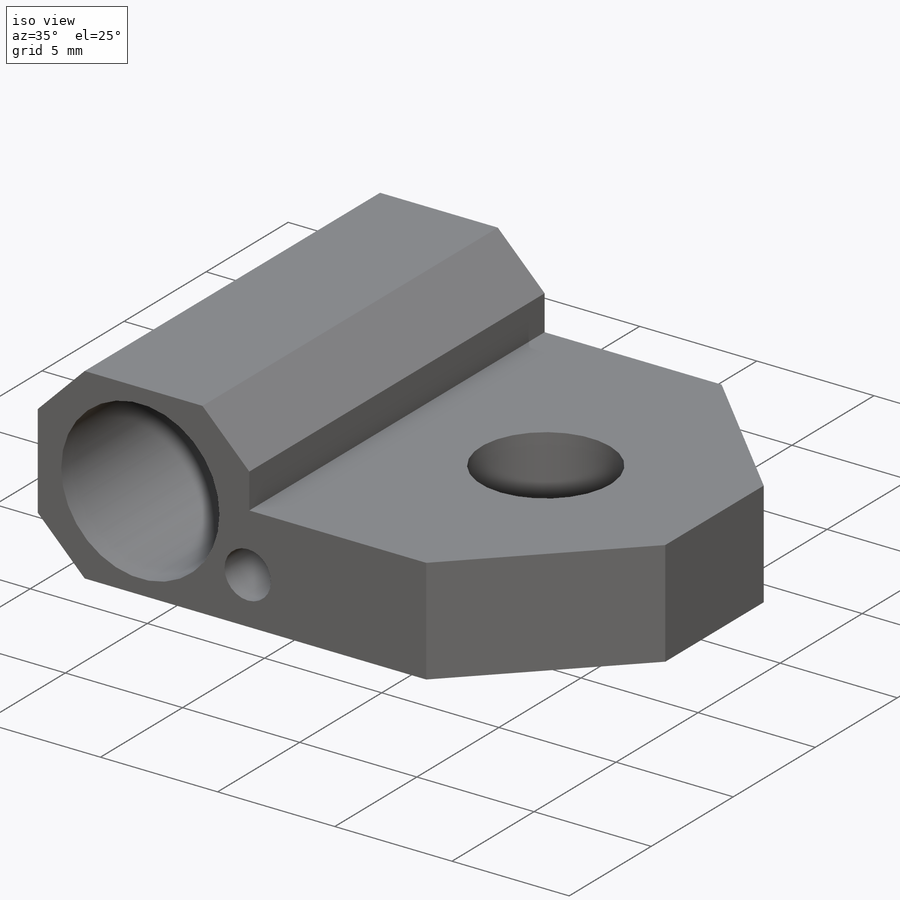
[diagram: iso view]
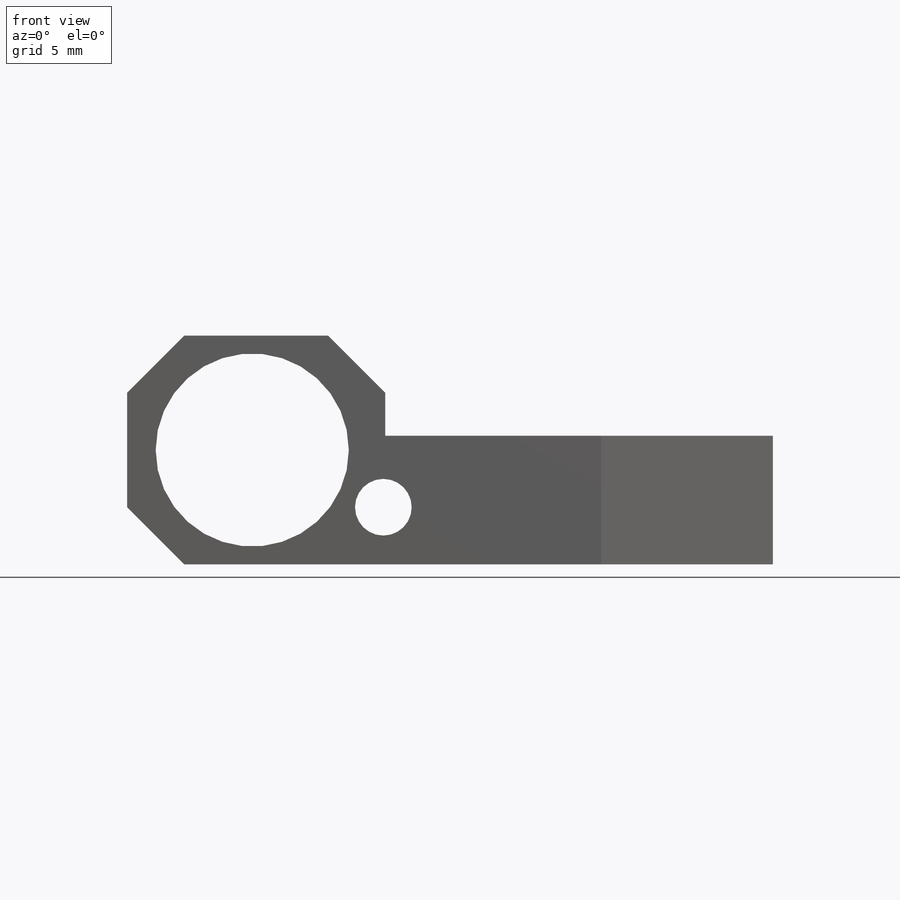
[diagram: front view]
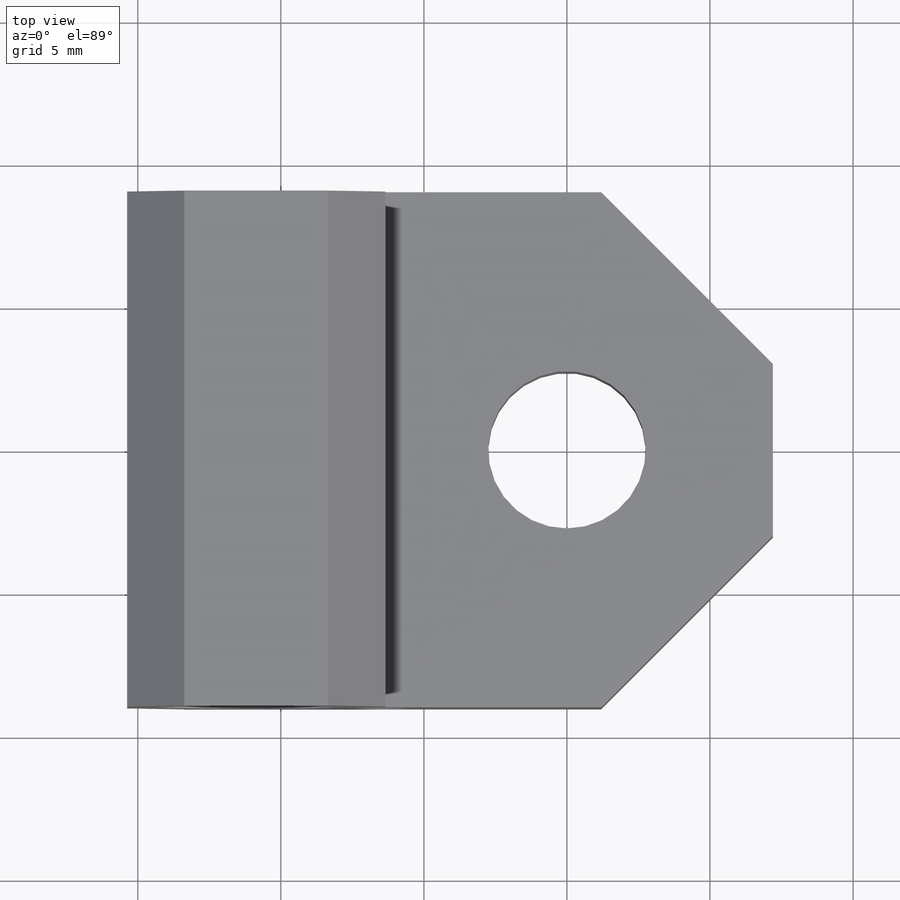
[diagram: top view]
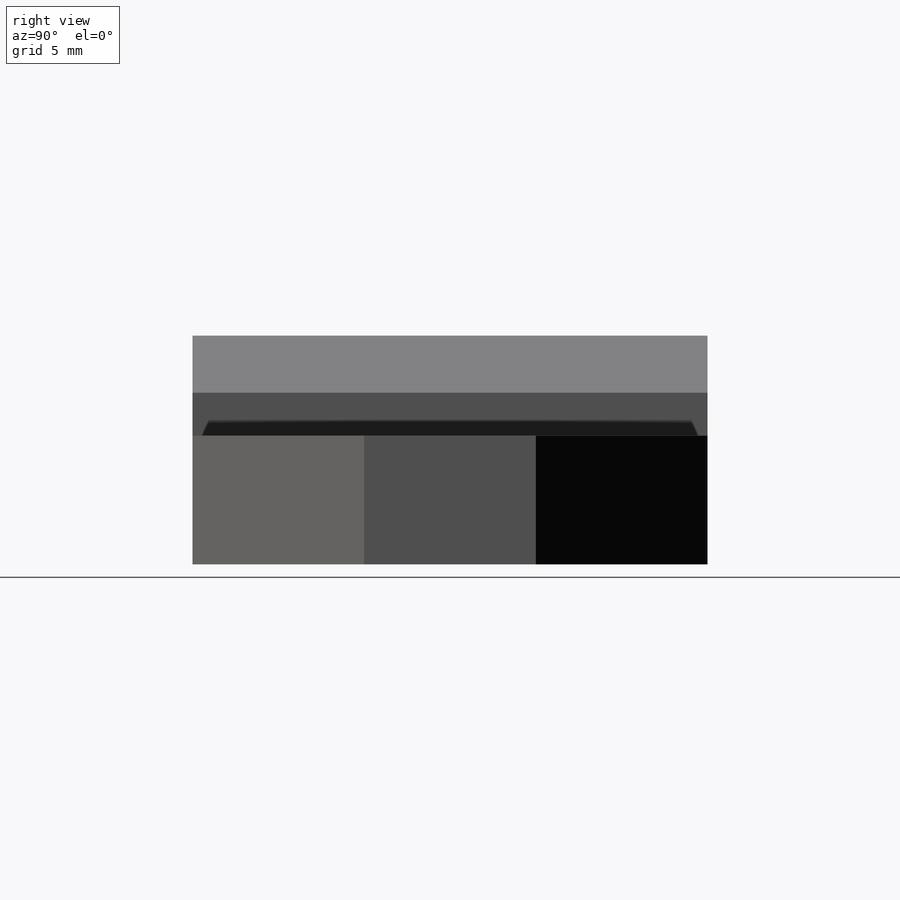
[diagram: right view]
SOLIDWORKS PART (.sldprt)
format: sldprt  version: not decoded by parser v0  size: 230,400 bytes
history: native  units: mm
features: sketch x4, cut_extrude x3, material x1, extrude x1, thread x1, chamfer x1 (+16 scaffold rows collapsed)
feature tree (27):
  scaffold x16  (default folders/planes/origin — collapsed)
  material  "2024 Alloy"
  sketch  "Sketch1"  dims[c1.D1=5.5mm c1.D4=12.7mm c1.D2=6.75mm c1.D3=11.0mm c1.D5=1.981mm c1.D6=1.0mm c1.D7=18.0mm c1.D8=4.0mm c2.D4=14.4mm]
  extrude  "Boss-Extrude1"  [1 undecoded]
  thread  "Cosmetic Thread1"  Diameter=7.9375mm  [1 undecoded]
  sketch  "Sketch3"  dims[D1=1.981mm D2=2.0mm D3=5.0mm]
  cut_extrude  "Cut-Extrude1"  [1 undecoded]
  sketch  "Sketch4"  dims[D1=3.5mm D2=12.7mm]
  cut_extrude  "Cut-Extrude2"  [1 undecoded]
  sketch  "Sketch5"  dims[D4=12.7mm D1=6.0mm D2=6.0mm D3=6.0mm]
  cut_extrude  "Cut-Extrude3"  [1 undecoded]
  chamfer  "Chamfer1"  Distance=2mm Angle=45deg
decode coverage: 6 of 10 modeling features carry decoded parameters
note: 5 parameter values undecoded
summary: no parameter record found for 4 features
note: suppression state not decoded; provenance and decode notes live in map.json
